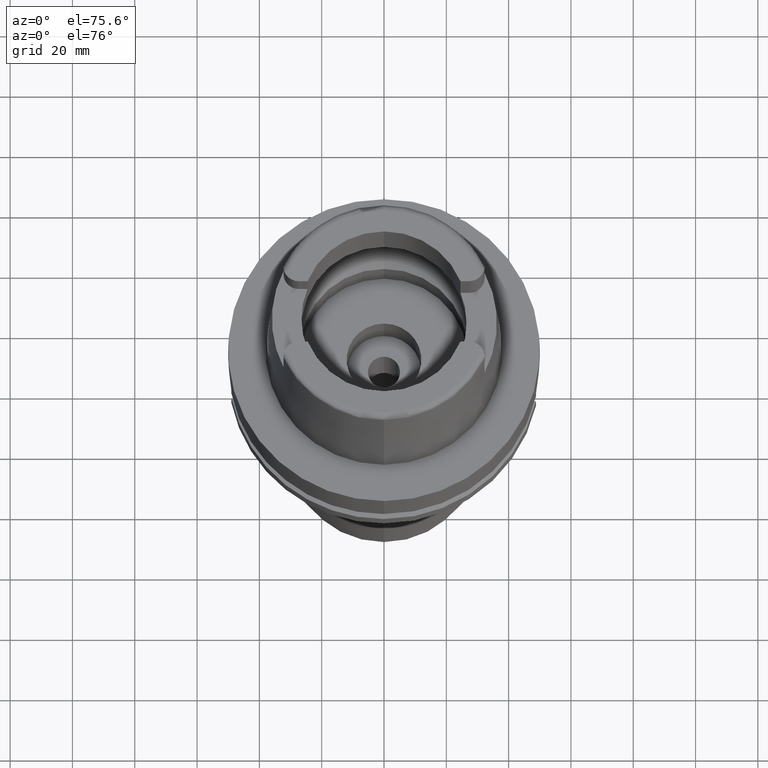
[diagram: clean part render]
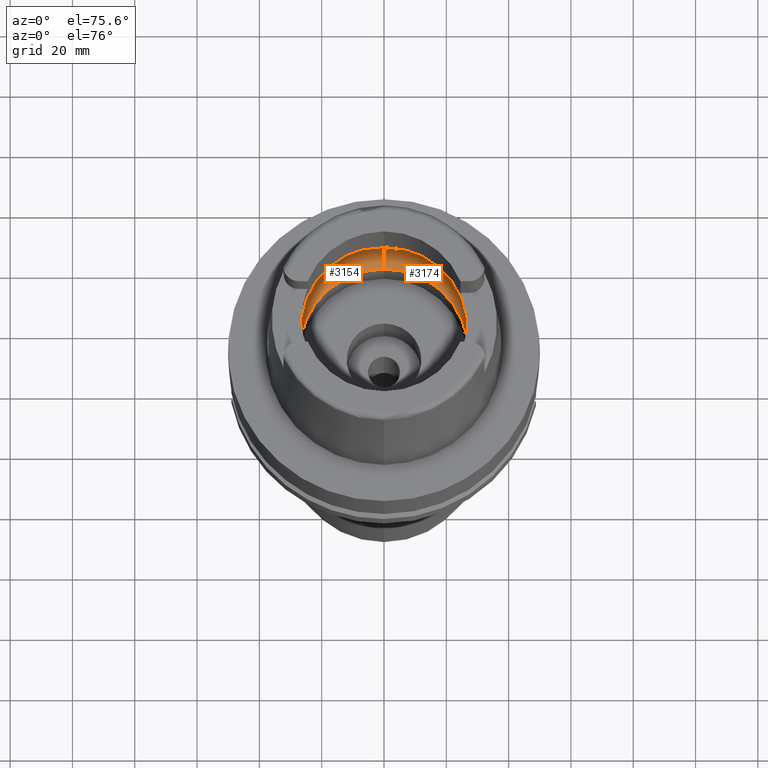
[diagram: same view with one multi-face feature highlighted, each face labeled with its STEP entity id]
A machine part, auxiliary view. The highlighted faces form ONE feature: a constant-radius fillet chain: 2 tangent blend faces with common blend radius 12 mm. The faces share edges in the B-rep.
Their STEP definitions:
[1] entity #3154 (Torus):
#576=CARTESIAN_POINT('',(-3.140918884336E1,-2.390158196044E0,9.496624327026E0));
#620=CARTESIAN_POINT('',(-3.140918884336E1,-2.390158196044E0,9.496624327026E0));
#621=CARTESIAN_POINT('',(-3.142817541841E1,-2.140654660144E0,9.388263030849E0));
#622=CARTESIAN_POINT('',(-3.145843231103E1,-1.626122367368E0,9.205188413217E0));
#623=CARTESIAN_POINT('',(-3.148416663133E1,-8.216249251093E-1,
9.037606191792E0));
#624=CARTESIAN_POINT('',(-3.148971910754E1,-2.740805254206E-1,9.E0));
#625=CARTESIAN_POINT('',(-3.148971910754E1,0.E0,9.E0));
#630=CARTESIAN_POINT('',(-3.148971910754E1,0.E0,9.E0));
#631=CARTESIAN_POINT('',(-3.148971910754E1,2.740807617027E-1,9.E0));
#632=CARTESIAN_POINT('',(-3.148416665247E1,8.216255738037E-1,9.037606070500E0));
#633=CARTESIAN_POINT('',(-3.145843205409E1,1.626128407090E0,9.205190031364E0));
#634=CARTESIAN_POINT('',(-3.142817523032E1,2.140657131917E0,9.388264104359E0));
#635=CARTESIAN_POINT('',(-3.140918884336E1,2.390158196044E0,9.496624327026E0));
#640=CARTESIAN_POINT('',(0.E0,1.340946904995E-14,9.496624327026E0));
#641=DIRECTION('',(0.E0,0.E0,-1.E0));
#642=DIRECTION('',(-9.971171061384E-1,7.587803796965E-2,0.E0));
#643=AXIS2_PLACEMENT_3D('',#640,#641,#642);
#648=CARTESIAN_POINT('',(0.E0,1.340946904995E-14,4.993178413040E-2));
#649=DIRECTION('',(0.E0,0.E0,1.E0));
#650=DIRECTION('',(0.E0,1.E0,0.E0));
#651=AXIS2_PLACEMENT_3D('',#648,#649,#650);
#656=CARTESIAN_POINT('',(0.E0,-1.95E1,9.496624327026E0));
#657=DIRECTION('',(-1.E0,0.E0,0.E0));
#658=DIRECTION('',(0.E0,-6.166666666667E-1,-7.872243785746E-1));
#659=AXIS2_PLACEMENT_3D('',#656,#657,#658);
#664=CARTESIAN_POINT('',(0.E0,1.340946904995E-14,9.496624327026E0));
#665=DIRECTION('',(0.E0,0.E0,-1.E0));
#666=DIRECTION('',(0.E0,-1.E0,0.E0));
#667=AXIS2_PLACEMENT_3D('',#664,#665,#666);
#698=CARTESIAN_POINT('',(0.E0,1.95E1,9.496624327026E0));
#699=DIRECTION('',(1.E0,0.E0,0.E0));
#700=DIRECTION('',(0.E0,6.166666666667E-1,-7.872243785746E-1));
#701=AXIS2_PLACEMENT_3D('',#698,#699,#700);
#2483=VERTEX_POINT('',#576);
#2484=CARTESIAN_POINT('',(0.E0,-3.15E1,9.496624327026E0));
#2485=VERTEX_POINT('',#2484);
#2486=CARTESIAN_POINT('',(0.E0,3.15E1,9.496624327026E0));
#2487=VERTEX_POINT('',#2486);
#2488=CARTESIAN_POINT('',(-3.140918884336E1,2.390158196044E0,9.496624327026E0));
#2489=VERTEX_POINT('',#2488);
#2493=CARTESIAN_POINT('',(-3.148971910754E1,0.E0,9.E0));
#2494=VERTEX_POINT('',#2493);
#2496=CARTESIAN_POINT('',(0.E0,-2.69E1,4.993178413040E-2));
#2497=VERTEX_POINT('',#2496);
#2498=CARTESIAN_POINT('',(0.E0,2.69E1,4.993178413040E-2));
#2499=VERTEX_POINT('',#2498);
#3137=CARTESIAN_POINT('',(0.E0,1.340946904995E-14,9.496624327026E0));
#3138=DIRECTION('',(0.E0,0.E0,-1.E0));
#3139=DIRECTION('',(0.E0,-1.E0,0.E0));
#3140=AXIS2_PLACEMENT_3D('',#3137,#3138,#3139);
#3141=TOROIDAL_SURFACE('',#3140,1.95E1,1.2E1);
#3142=ORIENTED_EDGE('',*,*,#3118,.T.);
#3143=ORIENTED_EDGE('',*,*,#3129,.T.);
#3144=ORIENTED_EDGE('',*,*,#3100,.T.);
#3146=ORIENTED_EDGE('',*,*,#3145,.F.);
#3148=ORIENTED_EDGE('',*,*,#3147,.T.);
#3150=ORIENTED_EDGE('',*,*,#3149,.T.);
#3151=ORIENTED_EDGE('',*,*,#3093,.T.);
#3152=EDGE_LOOP('',(#3142,#3143,#3144,#3146,#3148,#3150,#3151));
#3153=FACE_OUTER_BOUND('',#3152,.F.);
#626=B_SPLINE_CURVE_WITH_KNOTS('',3,(#620,#621,#622,#623,#624,#625),
.UNSPECIFIED.,.F.,.F.,(4,1,1,4),(0.E0,3.333333333333E-1,6.666666666667E-1,1.E0),
.UNSPECIFIED.);
#636=B_SPLINE_CURVE_WITH_KNOTS('',3,(#630,#631,#632,#633,#634,#635),
.UNSPECIFIED.,.F.,.F.,(4,1,1,4),(0.E0,3.333333333333E-1,6.666666666667E-1,1.E0),
.UNSPECIFIED.);
#644=CIRCLE('',#643,3.15E1);
#652=CIRCLE('',#651,2.69E1);
#660=CIRCLE('',#659,1.2E1);
#668=CIRCLE('',#667,3.15E1);
#702=CIRCLE('',#701,1.2E1);
#3093=EDGE_CURVE('',#2485,#2483,#668,.T.);
#3100=EDGE_CURVE('',#2489,#2487,#644,.T.);
#3118=EDGE_CURVE('',#2483,#2494,#626,.T.);
#3129=EDGE_CURVE('',#2494,#2489,#636,.T.);
#3145=EDGE_CURVE('',#2499,#2487,#702,.T.);
#3147=EDGE_CURVE('',#2499,#2497,#652,.T.);
#3149=EDGE_CURVE('',#2497,#2485,#660,.T.);
#3154=ADVANCED_FACE('',(#3153),#3141,.F.);
[2] entity #3174 (Torus):
#656=CARTESIAN_POINT('',(0.E0,-1.95E1,9.496624327026E0));
#657=DIRECTION('',(-1.E0,0.E0,0.E0));
#658=DIRECTION('',(0.E0,-6.166666666667E-1,-7.872243785746E-1));
#659=AXIS2_PLACEMENT_3D('',#656,#657,#658);
#672=CARTESIAN_POINT('',(3.148971910754E1,0.E0,9.E0));
#673=CARTESIAN_POINT('',(3.148971910754E1,-2.740810534917E-1,9.E0));
#674=CARTESIAN_POINT('',(3.148416660998E1,-8.216261538828E-1,9.037606336674E0));
#675=CARTESIAN_POINT('',(3.145843225422E1,-1.626123553126E0,9.205188771063E0));
#676=CARTESIAN_POINT('',(3.142817538157E1,-2.140655144261E0,9.388263241104E0));
#677=CARTESIAN_POINT('',(3.140918884336E1,-2.390158196044E0,9.496624327026E0));
#682=CARTESIAN_POINT('',(0.E0,1.340946904995E-14,9.496624327026E0));
#683=DIRECTION('',(0.E0,0.E0,-1.E0));
#684=DIRECTION('',(9.971171061384E-1,-7.587803796965E-2,0.E0));
#685=AXIS2_PLACEMENT_3D('',#682,#683,#684);
#690=CARTESIAN_POINT('',(0.E0,1.340946904995E-14,4.993178413040E-2));
#691=DIRECTION('',(0.E0,0.E0,1.E0));
#692=DIRECTION('',(0.E0,-1.E0,0.E0));
#693=AXIS2_PLACEMENT_3D('',#690,#691,#692);
#698=CARTESIAN_POINT('',(0.E0,1.95E1,9.496624327026E0));
#699=DIRECTION('',(1.E0,0.E0,0.E0));
#700=DIRECTION('',(0.E0,6.166666666667E-1,-7.872243785746E-1));
#701=AXIS2_PLACEMENT_3D('',#698,#699,#700);
#706=CARTESIAN_POINT('',(0.E0,1.340946904995E-14,9.496624327026E0));
#707=DIRECTION('',(0.E0,0.E0,-1.E0));
#708=DIRECTION('',(0.E0,1.E0,0.E0));
#709=AXIS2_PLACEMENT_3D('',#706,#707,#708);
#714=CARTESIAN_POINT('',(3.140918884336E1,2.390158196044E0,9.496624327026E0));
#715=CARTESIAN_POINT('',(3.142817526752E1,2.140656643004E0,9.388263892020E0));
#716=CARTESIAN_POINT('',(3.145843211147E1,1.626127209584E0,9.205189669970E0));
#717=CARTESIAN_POINT('',(3.148416667402E1,8.216243328234E-1,9.037605924179E0));
#718=CARTESIAN_POINT('',(3.148971910754E1,2.740802283854E-1,9.E0));
#719=CARTESIAN_POINT('',(3.148971910754E1,0.E0,9.E0));
#731=CARTESIAN_POINT('',(3.140918884336E1,-2.390158196044E0,9.496624327026E0));
#762=CARTESIAN_POINT('',(3.140918884336E1,2.390158196044E0,9.496624327026E0));
#2484=CARTESIAN_POINT('',(0.E0,-3.15E1,9.496624327026E0));
#2485=VERTEX_POINT('',#2484);
#2486=CARTESIAN_POINT('',(0.E0,3.15E1,9.496624327026E0));
#2487=VERTEX_POINT('',#2486);
#2490=VERTEX_POINT('',#731);
#2492=VERTEX_POINT('',#672);
#2495=VERTEX_POINT('',#762);
#2496=CARTESIAN_POINT('',(0.E0,-2.69E1,4.993178413040E-2));
#2497=VERTEX_POINT('',#2496);
#2498=CARTESIAN_POINT('',(0.E0,2.69E1,4.993178413040E-2));
#2499=VERTEX_POINT('',#2498);
#3155=CARTESIAN_POINT('',(0.E0,1.340946904995E-14,9.496624327026E0));
#3156=DIRECTION('',(0.E0,0.E0,-1.E0));
#3157=DIRECTION('',(0.E0,-1.E0,0.E0));
#3158=AXIS2_PLACEMENT_3D('',#3155,#3156,#3157);
#3159=TOROIDAL_SURFACE('',#3158,1.95E1,1.2E1);
#3161=ORIENTED_EDGE('',*,*,#3160,.T.);
#3163=ORIENTED_EDGE('',*,*,#3162,.T.);
#3164=ORIENTED_EDGE('',*,*,#3149,.F.);
#3166=ORIENTED_EDGE('',*,*,#3165,.T.);
#3167=ORIENTED_EDGE('',*,*,#3145,.T.);
#3169=ORIENTED_EDGE('',*,*,#3168,.T.);
#3171=ORIENTED_EDGE('',*,*,#3170,.T.);
#3172=EDGE_LOOP('',(#3161,#3163,#3164,#3166,#3167,#3169,#3171));
#3173=FACE_OUTER_BOUND('',#3172,.F.);
#660=CIRCLE('',#659,1.2E1);
#678=B_SPLINE_CURVE_WITH_KNOTS('',3,(#672,#673,#674,#675,#676,#677),
.UNSPECIFIED.,.F.,.F.,(4,1,1,4),(0.E0,3.333333333333E-1,6.666666666667E-1,1.E0),
.UNSPECIFIED.);
#686=CIRCLE('',#685,3.15E1);
#694=CIRCLE('',#693,2.69E1);
#702=CIRCLE('',#701,1.2E1);
#710=CIRCLE('',#709,3.15E1);
#720=B_SPLINE_CURVE_WITH_KNOTS('',3,(#714,#715,#716,#717,#718,#719),
.UNSPECIFIED.,.F.,.F.,(4,1,1,4),(0.E0,3.333333333333E-1,6.666666666667E-1,1.E0),
.UNSPECIFIED.);
#3145=EDGE_CURVE('',#2499,#2487,#702,.T.);
#3149=EDGE_CURVE('',#2497,#2485,#660,.T.);
#3160=EDGE_CURVE('',#2492,#2490,#678,.T.);
#3162=EDGE_CURVE('',#2490,#2485,#686,.T.);
#3165=EDGE_CURVE('',#2497,#2499,#694,.T.);
#3168=EDGE_CURVE('',#2487,#2495,#710,.T.);
#3170=EDGE_CURVE('',#2495,#2492,#720,.T.);
#3174=ADVANCED_FACE('',(#3173),#3159,.F.);